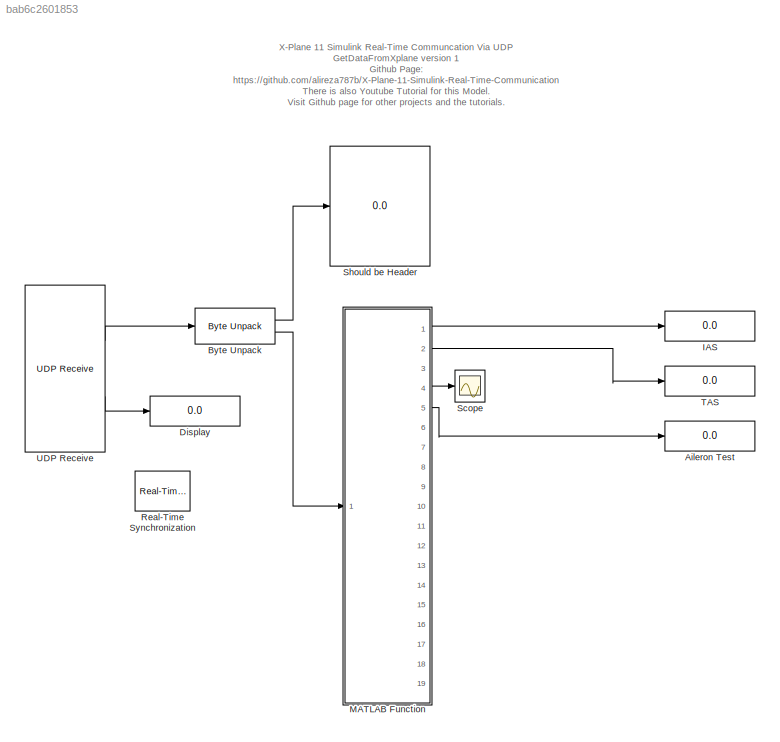
MODEL slx_bab6c2601853
KIND model
BLOCK [Display] Aileron Test
  Decimation = 1
  Ports = [1]
BLOCK [Reference] Byte Unpack  REF=etargetslib/Byte Unpack
  MultiThreadCoSim = auto
  Ports = [1, 2]
  SourceBlock = etargetslib/Byte Unpack
  SourceType = Byte Unpack
  byteAlign = 1
  datatypes = {'uint8','single'}
  dimensions = {5,[9,8]}
BLOCK [Display] Display
  Decimation = 1
  Ports = [1]
BLOCK [Display] IAS
  Decimation = 1
  Ports = [1]
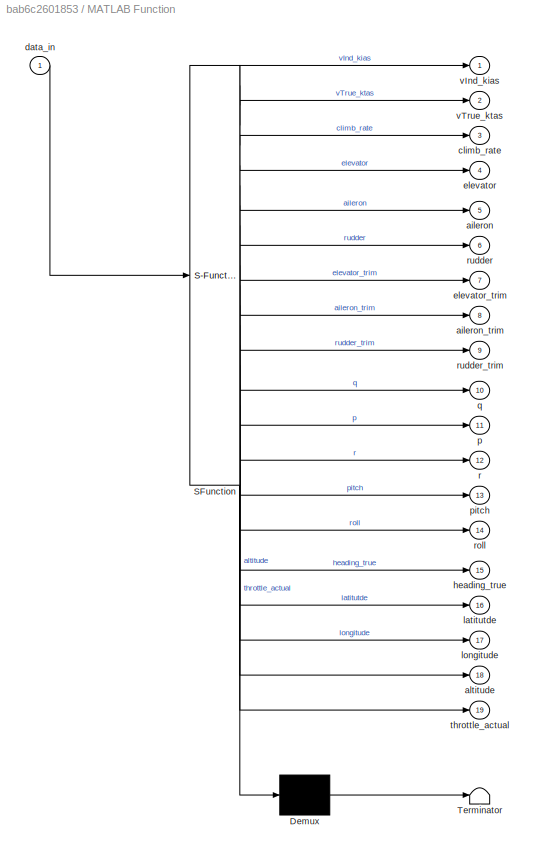
BLOCK [SubSystem] MATLAB Function
  ErrorFcn = Stateflow.Translate.translate
  PermitHierarchicalResolution = ParametersOnly
  Ports = [1, 19]
  RequestExecContextInheritance = off
  SFBlockType = MATLAB Function
  TreatAsAtomicUnit = on
BLOCK [Demux] MATLAB Function/ Demux 
  Outputs = 1
  Ports = [1, 1]
BLOCK [S-Function] MATLAB Function/ SFunction 
  EnableBusSupport = on
  FunctionName = sf_sfun
  PortCounts = [1 20]
  Ports = [1, 20]
  SFunctionDeploymentMode = off
  Tag = Stateflow S-Function getDataFromXplane 2
BLOCK [Terminator] MATLAB Function/ Terminator 
BLOCK [Outport] MATLAB Function/aileron
  IconDisplay = Port number
  Port = 5
BLOCK [Outport] MATLAB Function/aileron_trim
  IconDisplay = Port number
  Port = 8
BLOCK [Outport] MATLAB Function/altitude
  IconDisplay = Port number
  Port = 18
BLOCK [Outport] MATLAB Function/climb_rate
  IconDisplay = Port number
  Port = 3
BLOCK [Inport] MATLAB Function/data_in
  IconDisplay = Port number
BLOCK [Outport] MATLAB Function/elevator
  IconDisplay = Port number
  Port = 4
BLOCK [Outport] MATLAB Function/elevator_trim
  IconDisplay = Port number
  Port = 7
BLOCK [Outport] MATLAB Function/heading_true
  IconDisplay = Port number
  Port = 15
BLOCK [Outport] MATLAB Function/latitutde
  IconDisplay = Port number
  Port = 16
BLOCK [Outport] MATLAB Function/longitude
  IconDisplay = Port number
  Port = 17
BLOCK [Outport] MATLAB Function/p
  IconDisplay = Port number
  Port = 11
BLOCK [Outport] MATLAB Function/pitch
  IconDisplay = Port number
  Port = 13
BLOCK [Outport] MATLAB Function/q
  IconDisplay = Port number
  Port = 10
BLOCK [Outport] MATLAB Function/r
  IconDisplay = Port number
  Port = 12
BLOCK [Outport] MATLAB Function/roll
  IconDisplay = Port number
  Port = 14
BLOCK [Outport] MATLAB Function/rudder
  IconDisplay = Port number
  Port = 6
BLOCK [Outport] MATLAB Function/rudder_trim
  IconDisplay = Port number
  Port = 9
BLOCK [Outport] MATLAB Function/throttle_actual
  IconDisplay = Port number
  Port = 19
BLOCK [Outport] MATLAB Function/vInd_kias
  IconDisplay = Port number
BLOCK [Outport] MATLAB Function/vTrue_ktas
  IconDisplay = Port number
  Port = 2
BLOCK [Reference] Real-Time Synchronization  REF=rtwinlib/Real-Time
Synchronization
  MaxMissedTicks = 10
  MultiThreadCoSim = auto
  Ports = []
  SampleTime = 0.1
  ShowMissedTicks = off
  SourceBlock = rtwinlib/Real-Time\nSynchronization
  SourceType = Simulink Desktop Real-Time Synchronization
  YieldWhenWaiting = off
BLOCK [Scope] Scope
  DataFormat = StructureWithTime
  Decimation = 1
  Floating = off
  Grid = on
  LimitDataPoints = off
  MaxDataPoints = 5000
  NumInputPorts = 1
  Ports = [1]
  SampleInput = off
  SampleTime = -1
  SaveName = ScopeData
  SaveToWorkspace = off
  ShowLegends = off
  TickLabels = OneTimeTick
  TimeRange = auto
  YMax = 1.00000
  YMin = -1.00000
  ZoomMode = on
BLOCK [Display] Should be Header
  Decimation = 1
  Ports = [1]
BLOCK [Display] TAS
  Decimation = 1
  Ports = [1]
BLOCK [Reference] UDP Receive  REF=dspnetwork/UDP Receive
  MultiThreadCoSim = auto
  Ports = [0, 2]
  SourceBlock = dspnetwork/UDP Receive
  SourceType = UDP Receive
  blockPlatform = []
  blockingTime = 0
  dims = 293
  isVarSize = off
  localPort = 49004
  localURL = '0.0.0.0'
  recvBufferSize = 8192
  remotePort = -1
  remoteURL = '127.0.0.1'
  sampletime = inf
  showBlockingTime = off
  signalDatatype = uint8
ANNOTATION (root): X-Plane 11 Simulink Real-Time Communcation Via UDP GetDataFromXplane version 1 Github Page: https://github.com/alireza787b/X-Plane-11-Simulink-Real-Time-Communication There is also Youtube Tutorial for this Model. Visit Github page for other projects and the tutorials.
LINE Byte Unpack:1 -> Should be Header:1
LINE Byte Unpack:2 -> MATLAB Function:1
LINE MATLAB Function:1 -> IAS:1
LINE MATLAB Function:2 -> TAS:1
LINE MATLAB Function:4 -> Scope:1
LINE MATLAB Function:5 -> Aileron Test:1
LINE UDP Receive:1 -> Byte Unpack:1
LINE UDP Receive:2 -> Display:1
